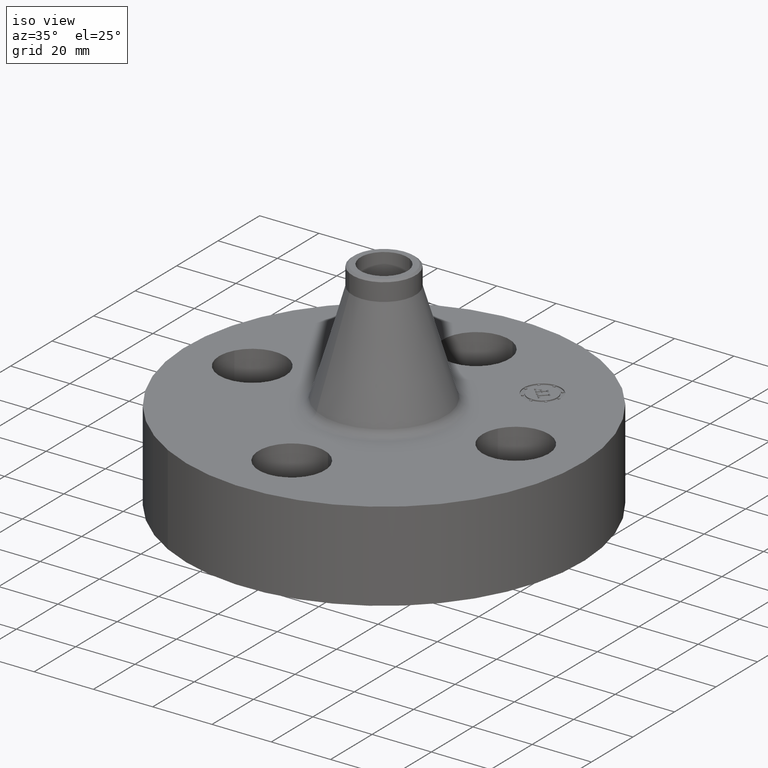
[diagram: clean part render]
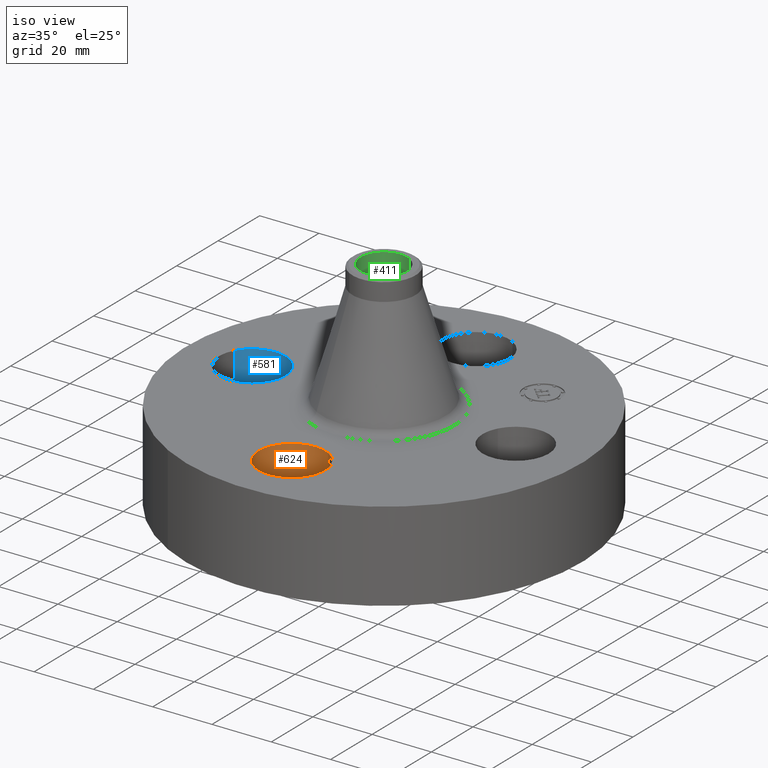
[diagram: same view with three faces highlighted in distinct colors, each labeled with its STEP entity id]
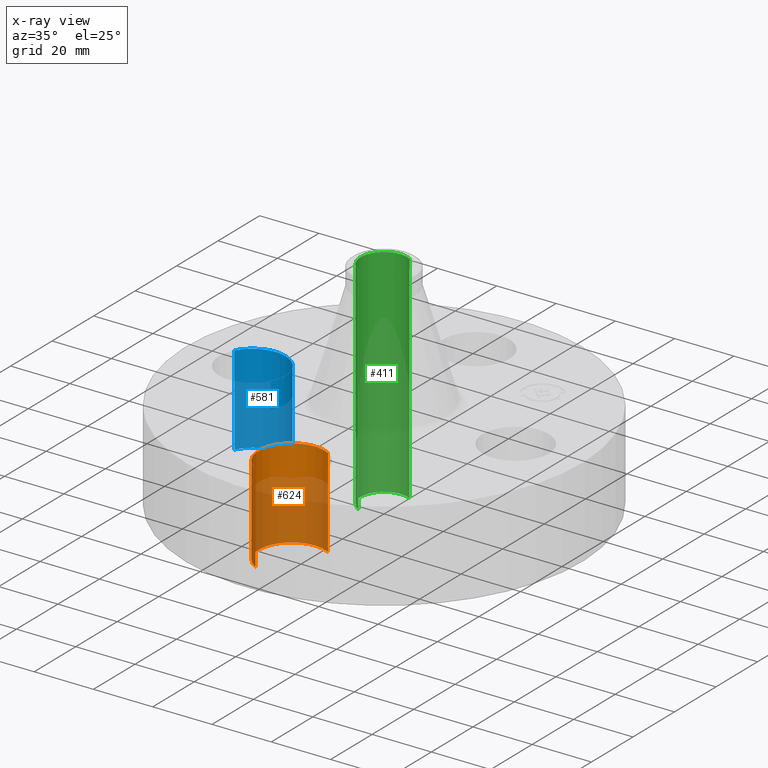
[diagram: x-ray of the same camera — body ghosted, the three highlighted faces saturated]
A machine part, iso view with three faces highlighted in distinct colors.
The next image is the same camera in x-ray (body ghosted, the three faces saturated) — at least one of them is partly hidden behind the body in this view.
Their STEP definitions:

[orange] entity #624 — the highlighted cylindrical surface (partial cylindrical patch) has radius 11.176 mm, axis along (0, -0, -1).
#452=AXIS2_PLACEMENT_3D('Circle Axis2P3D',#450,#451,$) ;
#585=AXIS2_PLACEMENT_3D('Cylinder Axis2P3D',#582,#583,#584) ;
#615=AXIS2_PLACEMENT_3D('Circle Axis2P3D',#613,#614,$) ;
#445=CARTESIAN_POINT('Vertex',(0.210947236987,-1.36386367277,0.)) ;
#447=CARTESIAN_POINT('Vertex',(-0.210947236987,-2.13613632724,0.)) ;
#450=CARTESIAN_POINT('Axis2P3D Location',(3.49676543189E-017,-1.75000000001,0.)) ;
#582=CARTESIAN_POINT('Axis2P3D Location',(1.07156594926E-016,-1.75000000001,1.18606299213)) ;
#587=CARTESIAN_POINT('Line Origine',(0.210947236987,-1.36386367277,0.595000000002)) ;
#591=CARTESIAN_POINT('Vertex',(0.210947236987,-1.36386367277,1.19)) ;
#594=CARTESIAN_POINT('Line Origine',(-0.210947236987,-2.13613632724,0.595000000002)) ;
#598=CARTESIAN_POINT('Vertex',(-0.210947236987,-2.13613632724,1.19)) ;
#613=CARTESIAN_POINT('Axis2P3D Location',(1.07156594926E-016,-1.75000000001,1.19)) ;
#451=DIRECTION('Axis2P3D Direction',(0.,0.,-0.0393700787402)) ;
#583=DIRECTION('Axis2P3D Direction',(0.,-0.,-0.0393700787402)) ;
#584=DIRECTION('Axis2P3D XDirection',(-0.0188750212049,-0.0345504945626,0.)) ;
#588=DIRECTION('Vector Direction',(0.,0.,-0.0393700787402)) ;
#595=DIRECTION('Vector Direction',(0.,0.,-0.0393700787402)) ;
#614=DIRECTION('Axis2P3D Direction',(0.,-0.,-0.0393700787402)) ;
#589=VECTOR('Line Direction',#588,0.0393700787402) ;
#596=VECTOR('Line Direction',#595,0.0393700787402) ;
#619=ORIENTED_EDGE('',*,*,#600,.F.) ;
#620=ORIENTED_EDGE('',*,*,#454,.T.) ;
#621=ORIENTED_EDGE('',*,*,#593,.T.) ;
#622=ORIENTED_EDGE('',*,*,#617,.F.) ;
#624=ADVANCED_FACE('PartBody',(#623),#586,.F.) ;
#453=CIRCLE('generated circle',#452,0.440000000002) ;
#616=CIRCLE('generated circle',#615,0.440000000002) ;
#586=CYLINDRICAL_SURFACE('generated cylinder',#585,0.440000000002) ;
#454=EDGE_CURVE('',#448,#446,#453,.T.) ;
#593=EDGE_CURVE('',#446,#592,#590,.F.) ;
#600=EDGE_CURVE('',#448,#599,#597,.F.) ;
#617=EDGE_CURVE('',#599,#592,#616,.T.) ;
#618=EDGE_LOOP('',(#619,#620,#621,#622)) ;
#623=FACE_OUTER_BOUND('',#618,.T.) ;
#590=LINE('Line',#587,#589) ;
#597=LINE('Line',#594,#596) ;
#446=VERTEX_POINT('',#445) ;
#448=VERTEX_POINT('',#447) ;
#592=VERTEX_POINT('',#591) ;
#599=VERTEX_POINT('',#598) ;

[blue] entity #581 — the highlighted cylindrical surface (partial cylindrical patch) has radius 11.176 mm, axis along (-0, 0, -1).
#470=AXIS2_PLACEMENT_3D('Circle Axis2P3D',#468,#469,$) ;
#542=AXIS2_PLACEMENT_3D('Cylinder Axis2P3D',#539,#540,#541) ;
#572=AXIS2_PLACEMENT_3D('Circle Axis2P3D',#570,#571,$) ;
#463=CARTESIAN_POINT('Vertex',(-1.36386367277,-0.210947236987,0.)) ;
#465=CARTESIAN_POINT('Vertex',(-2.13613632724,0.210947236987,0.)) ;
#468=CARTESIAN_POINT('Axis2P3D Location',(-1.75000000001,-1.39870617276E-016,0.)) ;
#539=CARTESIAN_POINT('Axis2P3D Location',(-1.75000000001,-2.14313189852E-016,1.18606299213)) ;
#544=CARTESIAN_POINT('Line Origine',(-1.36386367277,-0.210947236987,0.595000000002)) ;
#548=CARTESIAN_POINT('Vertex',(-1.36386367277,-0.210947236987,1.19)) ;
#551=CARTESIAN_POINT('Line Origine',(-2.13613632724,0.210947236987,0.595000000002)) ;
#555=CARTESIAN_POINT('Vertex',(-2.13613632724,0.210947236987,1.19)) ;
#570=CARTESIAN_POINT('Axis2P3D Location',(-1.75000000001,-2.14313189852E-016,1.19)) ;
#469=DIRECTION('Axis2P3D Direction',(0.,0.,-0.0393700787402)) ;
#540=DIRECTION('Axis2P3D Direction',(-0.,0.,-0.0393700787402)) ;
#541=DIRECTION('Axis2P3D XDirection',(-0.0345504945626,0.0188750212049,0.)) ;
#545=DIRECTION('Vector Direction',(0.,0.,-0.0393700787402)) ;
#552=DIRECTION('Vector Direction',(0.,0.,-0.0393700787402)) ;
#571=DIRECTION('Axis2P3D Direction',(-0.,0.,-0.0393700787402)) ;
#546=VECTOR('Line Direction',#545,0.0393700787402) ;
#553=VECTOR('Line Direction',#552,0.0393700787402) ;
#576=ORIENTED_EDGE('',*,*,#557,.F.) ;
#577=ORIENTED_EDGE('',*,*,#472,.T.) ;
#578=ORIENTED_EDGE('',*,*,#550,.T.) ;
#579=ORIENTED_EDGE('',*,*,#574,.F.) ;
#581=ADVANCED_FACE('PartBody',(#580),#543,.F.) ;
#471=CIRCLE('generated circle',#470,0.440000000002) ;
#573=CIRCLE('generated circle',#572,0.440000000002) ;
#543=CYLINDRICAL_SURFACE('generated cylinder',#542,0.440000000002) ;
#472=EDGE_CURVE('',#466,#464,#471,.T.) ;
#550=EDGE_CURVE('',#464,#549,#547,.F.) ;
#557=EDGE_CURVE('',#466,#556,#554,.F.) ;
#574=EDGE_CURVE('',#556,#549,#573,.T.) ;
#575=EDGE_LOOP('',(#576,#577,#578,#579)) ;
#580=FACE_OUTER_BOUND('',#575,.T.) ;
#547=LINE('Line',#544,#546) ;
#554=LINE('Line',#551,#553) ;
#464=VERTEX_POINT('',#463) ;
#466=VERTEX_POINT('',#465) ;
#549=VERTEX_POINT('',#548) ;
#556=VERTEX_POINT('',#555) ;

[green] entity #411 — the highlighted cylindrical surface (edge-blend (fillet) strip) has radius 7.8994 mm, axis along (0, 0, -1).
#356=AXIS2_PLACEMENT_3D('Circle Axis2P3D',#354,#355,$) ;
#384=AXIS2_PLACEMENT_3D('Cylinder Axis2P3D',#381,#382,#383) ;
#395=AXIS2_PLACEMENT_3D('Circle Axis2P3D',#393,#394,$) ;
#354=CARTESIAN_POINT('Axis2P3D Location',(0.,0.,2.88000000001)) ;
#358=CARTESIAN_POINT('Vertex',(-0.149101342507,-0.272928176749,2.88000000001)) ;
#360=CARTESIAN_POINT('Vertex',(0.149101342507,0.272928176749,2.88000000001)) ;
#381=CARTESIAN_POINT('Axis2P3D Location',(0.,0.,1.44000000001)) ;
#386=CARTESIAN_POINT('Line Origine',(-0.149101342507,-0.272928176749,1.44000000001)) ;
#390=CARTESIAN_POINT('Vertex',(-0.149101342507,-0.272928176749,-4.19611851827E-015)) ;
#393=CARTESIAN_POINT('Axis2P3D Location',(0.,0.,-4.47585975282E-015)) ;
#397=CARTESIAN_POINT('Vertex',(0.149101342507,0.272928176749,-4.19611851827E-015)) ;
#400=CARTESIAN_POINT('Line Origine',(0.149101342507,0.272928176749,1.44000000001)) ;
#355=DIRECTION('Axis2P3D Direction',(0.,0.,-0.0393700787402)) ;
#382=DIRECTION('Axis2P3D Direction',(0.,0.,-0.0393700787402)) ;
#383=DIRECTION('Axis2P3D XDirection',(0.0188750212049,0.0345504945626,0.)) ;
#387=DIRECTION('Vector Direction',(0.,0.,-0.0393700787402)) ;
#394=DIRECTION('Axis2P3D Direction',(0.,0.,-0.0393700787402)) ;
#401=DIRECTION('Vector Direction',(0.,0.,-0.0393700787402)) ;
#388=VECTOR('Line Direction',#387,0.0393700787402) ;
#402=VECTOR('Line Direction',#401,0.0393700787402) ;
#406=ORIENTED_EDGE('',*,*,#362,.F.) ;
#407=ORIENTED_EDGE('',*,*,#392,.T.) ;
#408=ORIENTED_EDGE('',*,*,#399,.T.) ;
#409=ORIENTED_EDGE('',*,*,#404,.F.) ;
#411=ADVANCED_FACE('PartBody',(#410),#385,.F.) ;
#357=CIRCLE('generated circle',#356,0.311000000001) ;
#396=CIRCLE('generated circle',#395,0.311000000001) ;
#385=CYLINDRICAL_SURFACE('generated cylinder',#384,0.311000000001) ;
#362=EDGE_CURVE('',#359,#361,#357,.T.) ;
#392=EDGE_CURVE('',#359,#391,#389,.T.) ;
#399=EDGE_CURVE('',#391,#398,#396,.T.) ;
#404=EDGE_CURVE('',#361,#398,#403,.T.) ;
#405=EDGE_LOOP('',(#406,#407,#408,#409)) ;
#410=FACE_OUTER_BOUND('',#405,.T.) ;
#389=LINE('Line',#386,#388) ;
#403=LINE('Line',#400,#402) ;
#359=VERTEX_POINT('',#358) ;
#361=VERTEX_POINT('',#360) ;
#391=VERTEX_POINT('',#390) ;
#398=VERTEX_POINT('',#397) ;